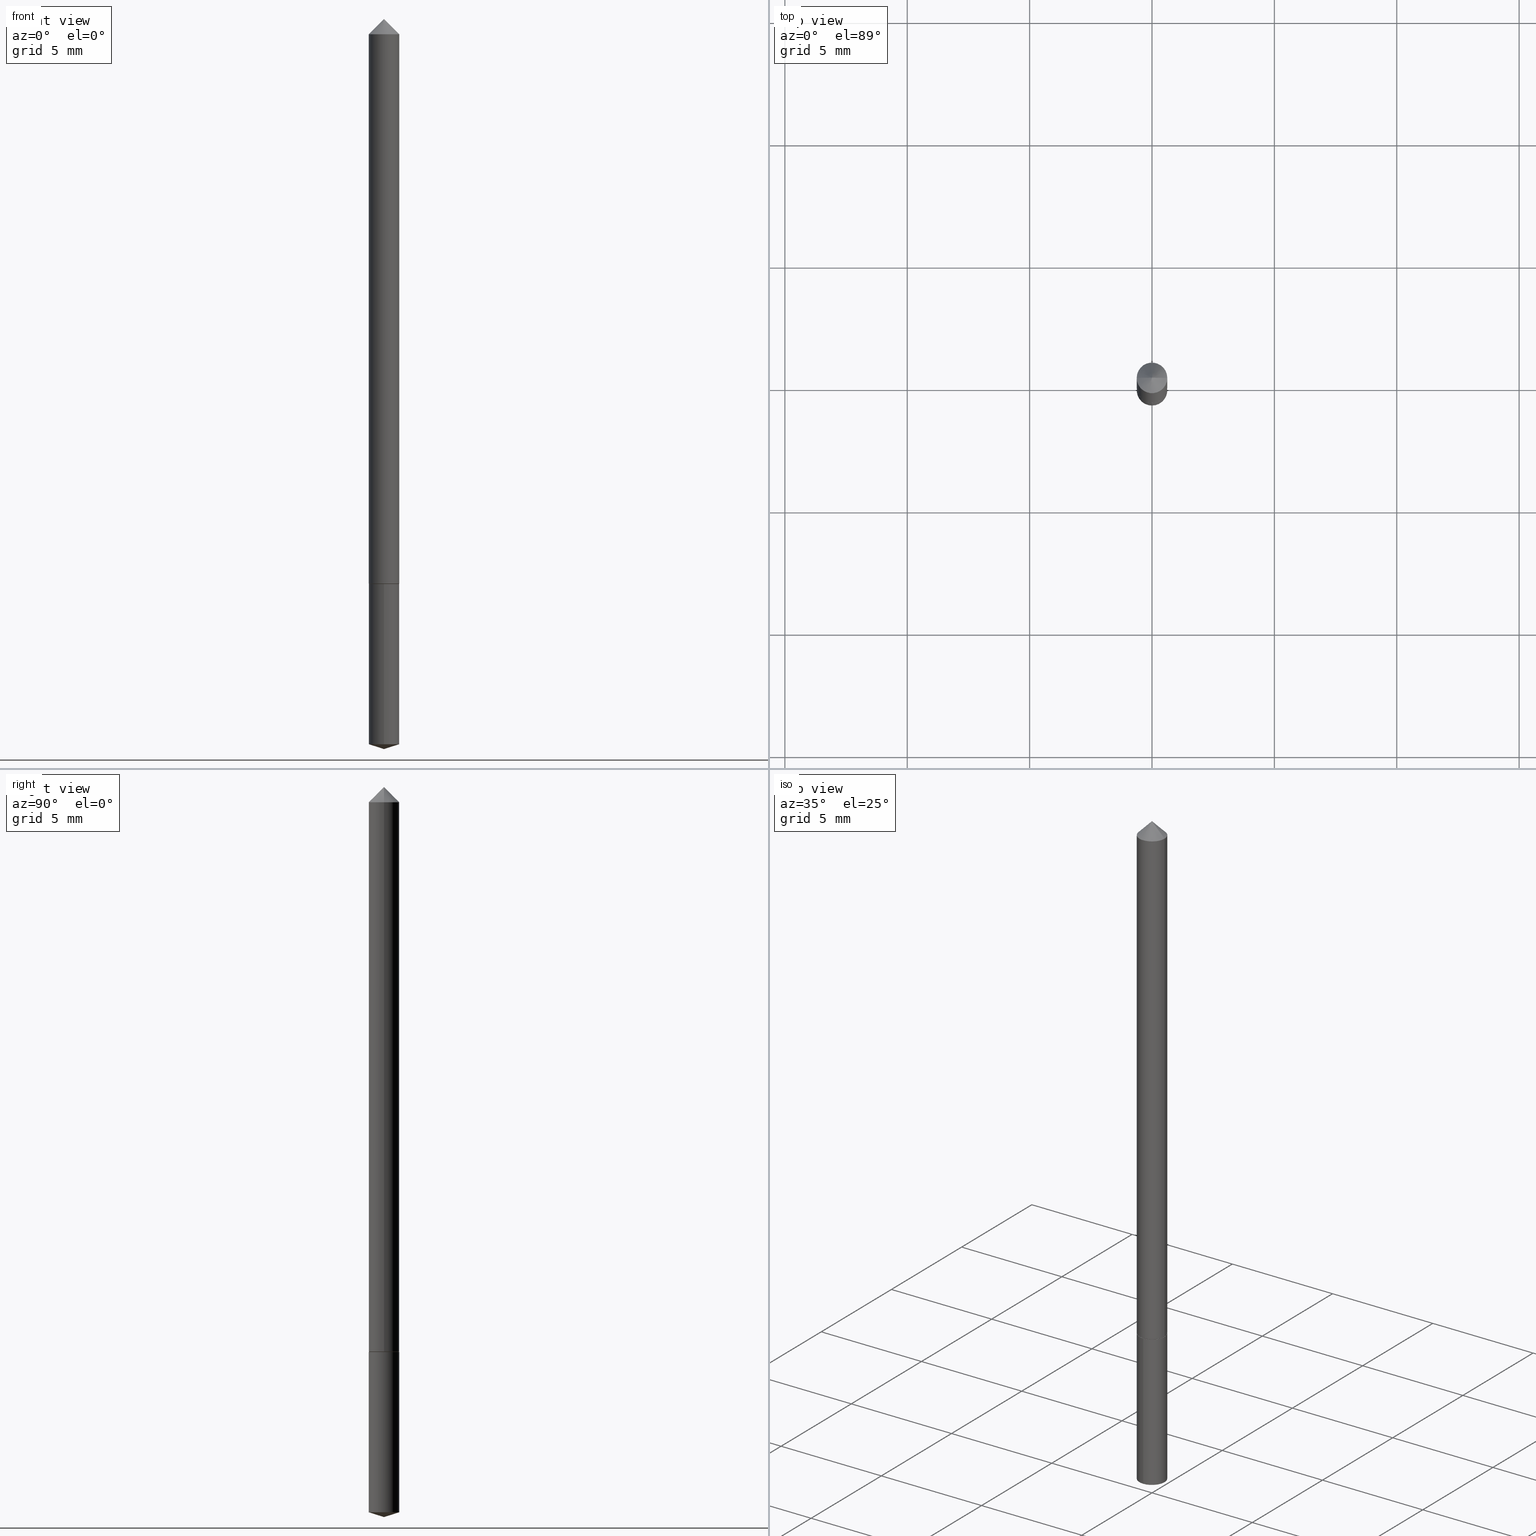
[diagram: canonical four-view strip — front | top / right | iso, engineering-drawing reading convention]
A machine part, canonical four-view strip (front | top / right | iso — engineering-drawing reading convention). The complete STEP part file that produces these views, byte-faithful:
ISO-10303-21;
HEADER;
FILE_DESCRIPTION (( 'STEP AP203' ),
    '1' );
FILE_NAME ('68658.STEP',
    '2024-04-23T13:26:09',
    ( '' ),
    ( '' ),
    'SwSTEP 2.0',
    'SolidWorks 2023',
    '' );
FILE_SCHEMA (( 'CONFIG_CONTROL_DESIGN' ));
ENDSEC;

DATA;
#1 = ORIENTED_EDGE ( 'NONE', *, *, #219, .T. ) ;
#2 = VERTEX_POINT ( 'NONE', #37 ) ;
#3 =( CONVERSION_BASED_UNIT ( 'INCH', #104 ) LENGTH_UNIT ( ) NAMED_UNIT ( #122 ) );
#4 = CARTESIAN_POINT ( 'NONE',  ( 1.747935129970070074E-16, 0.02459999999999680151, -0.9153000000000002245 ) ) ;
#5 = AXIS2_PLACEMENT_3D ( 'NONE', #108, #217, #82 ) ;
#6 = LINE ( 'NONE', #71, #221 ) ;
#7 =( NAMED_UNIT ( * ) SI_UNIT ( $, .STERADIAN. ) SOLID_ANGLE_UNIT ( ) );
#8 = CARTESIAN_POINT ( 'NONE',  ( 2.237114863898163135E-29, -3.194007128773709542E-15, -0.9148000000000000576 ) ) ;
#9 = EDGE_CURVE ( 'NONE', #27, #173, #145, .T. ) ;
#10 = UNCERTAINTY_MEASURE_WITH_UNIT (LENGTH_MEASURE( 1.000000000000000082E-05 ), #3, 'distance_accuracy_value', 'NONE');
#11 = CARTESIAN_POINT ( 'NONE',  ( 2.888189268024480678E-29, -4.124009058661143600E-15, -1.181100000000000039 ) ) ;
#12 = PRODUCT_RELATED_PRODUCT_CATEGORY ( 'detail', '', ( #361 ) ) ;
#13 = DIRECTION ( 'NONE',  ( -2.445338470937668711E-29, 3.491667986335741257E-15, 1.000000000000000000 ) ) ;
#14 = CIRCLE ( 'NONE', #134, 0.02410000000000009357 ) ;
#15 = DIRECTION ( 'NONE',  ( -2.445468806185136877E-29, 3.491481338843145188E-15, 1.000000000000000000 ) ) ;
#16 = EDGE_CURVE ( 'NONE', #200, #27, #229, .T. ) ;
#17 = CARTESIAN_POINT ( 'NONE',  ( 2.869341662322656677E-29, -4.096755620504595601E-15, -1.173343649793576970 ) ) ;
#18 = ADVANCED_FACE ( 'NONE', ( #120 ), #363, .T. ) ;
#19 =( LENGTH_UNIT ( ) NAMED_UNIT ( * ) SI_UNIT ( $, .METRE. ) );
#20 = CARTESIAN_POINT ( 'NONE',  ( -0.02460000000000000381, 6.267209003223318606E-17, -0.03125000000000020123 ) ) ;
#21 = CALENDAR_DATE ( 2024, 23, 4 ) ;
#22 = DIRECTION ( 'NONE',  ( 1.000000000000000000, -6.982962677686265922E-15, 4.876176775795935793E-29 ) ) ;
#23 = PERSON_AND_ORGANIZATION_ROLE ( 'design_supplier' ) ;
#24 = LINE ( 'NONE', #20, #185 ) ;
#25 = PERSON_AND_ORGANIZATION ( #309, #243 ) ;
#26 = AXIS2_PLACEMENT_3D ( 'NONE', #133, #353, #159 ) ;
#27 = VERTEX_POINT ( 'NONE', #152 ) ;
#28 = EDGE_CURVE ( 'NONE', #308, #307, #357, .T. ) ;
#29 = COORDINATED_UNIVERSAL_TIME_OFFSET ( 5, 0, .BEHIND. ) ;
#30 = ORIENTED_EDGE ( 'NONE', *, *, #9, .F. ) ;
#31 = CC_DESIGN_PERSON_AND_ORGANIZATION_ASSIGNMENT ( #57, #113, ( #300 ) ) ;
#32 = VERTEX_POINT ( 'NONE', #65 ) ;
#33 = AXIS2_PLACEMENT_3D ( 'NONE', #168, #190, #130 ) ;
#34 = AXIS2_PLACEMENT_3D ( 'NONE', #79, #216, #241 ) ;
#35 = ORIENTED_EDGE ( 'NONE', *, *, #16, .T. ) ;
#36 = EDGE_CURVE ( 'NONE', #32, #112, #61, .T. ) ;
#37 = CARTESIAN_POINT ( 'NONE',  ( -0.02410000000000009357, -3.021862842950835626E-15, -0.9153000000000002245 ) ) ;
#38 = CARTESIAN_POINT ( 'NONE',  ( 1.747935129970133429E-16, 0.02459999999999680151, -0.9153000000000002245 ) ) ;
#39 = EDGE_CURVE ( 'NONE', #2, #60, #118, .T. ) ;
#40 = CARTESIAN_POINT ( 'NONE',  ( -0.02460000000000011136, -3.019213615776724031E-15, -0.9148000000000000576 ) ) ;
#41 = EDGE_CURVE ( 'NONE', #173, #333, #155, .T. ) ;
#42 = LINE ( 'NONE', #236, #68 ) ;
#43 = MANIFOLD_SOLID_BREP ( 'Body-Move/Copy2[1]', #269 ) ;
#44 = FACE_OUTER_BOUND ( 'NONE', #175, .T. ) ;
#45 = DIRECTION ( 'NONE',  ( -2.445468806185136597E-29, 3.491481338843145583E-15, 1.000000000000000000 ) ) ;
#46 = VECTOR ( 'NONE', #93, 39.37007874015748143 ) ;
#47 = DIRECTION ( 'NONE',  ( -2.445338470937668711E-29, 3.491667986335741257E-15, 1.000000000000000000 ) ) ;
#48 = DIRECTION ( 'NONE',  ( 1.000000000000000000, -6.982962677686273810E-15, 0.000000000000000000 ) ) ;
#49 = DATE_AND_TIME ( #227, #271 ) ;
#50 = CARTESIAN_POINT ( 'NONE',  ( -1.717808818710597549E-16, -0.02460000000000319570, -0.9152999999999998915 ) ) ;
#51 = CONICAL_SURFACE ( 'NONE', #254, 0.02460000000000000381, 0.7853981633974450594 ) ;
#52 = EDGE_CURVE ( 'NONE', #196, #307, #184, .T. ) ;
#53 = FACE_OUTER_BOUND ( 'NONE', #59, .T. ) ;
#54 = FACE_OUTER_BOUND ( 'NONE', #288, .T. ) ;
#55 = EDGE_LOOP ( 'NONE', ( #306, #84 ) ) ;
#56 = AXIS2_PLACEMENT_3D ( 'NONE', #347, #321, #99 ) ;
#57 = PERSON_AND_ORGANIZATION ( #309, #243 ) ;
#58 = EDGE_LOOP ( 'NONE', ( #1, #226 ) ) ;
#59 = EDGE_LOOP ( 'NONE', ( #176, #276, #230 ) ) ;
#60 = VERTEX_POINT ( 'NONE', #121 ) ;
#61 = CIRCLE ( 'NONE', #354, 0.02460000000000011136 ) ;
#62 =( GEOMETRIC_REPRESENTATION_CONTEXT ( 3 ) GLOBAL_UNCERTAINTY_ASSIGNED_CONTEXT ( ( #10 ) ) GLOBAL_UNIT_ASSIGNED_CONTEXT ( ( #3, #285, #7 ) ) REPRESENTATION_CONTEXT ( 'NONE', 'WORKASPACE' ) );
#63 = ORIENTED_EDGE ( 'NONE', *, *, #16, .F. ) ;
#64 = DIRECTION ( 'NONE',  ( 2.445338470937668431E-29, -3.491667986335741257E-15, -1.000000000000000000 ) ) ;
#65 = CARTESIAN_POINT ( 'NONE',  ( 0.02460000000000011136, -3.365788010644792593E-15, -0.9148000000000000576 ) ) ;
#66 = EDGE_CURVE ( 'NONE', #307, #308, #292, .T. ) ;
#67 = ORIENTED_EDGE ( 'NONE', *, *, #78, .T. ) ;
#68 = VECTOR ( 'NONE', #318, 39.37007874015748143 ) ;
#69 = DATE_AND_TIME ( #317, #125 ) ;
#70 = FACE_OUTER_BOUND ( 'NONE', #58, .T. ) ;
#71 = CARTESIAN_POINT ( 'NONE',  ( 0.02460000000000011136, -3.365788010644792593E-15, -0.9148000000000000576 ) ) ;
#72 = DIRECTION ( 'NONE',  ( 1.000000000000000000, -6.982962677686269077E-15, 0.000000000000000000 ) ) ;
#73 = CARTESIAN_POINT ( 'NONE',  ( -1.717808818710534933E-16, -0.02460000000000410816, -1.173343649793576970 ) ) ;
#74 = AXIS2_PLACEMENT_3D ( 'NONE', #17, #328, #128 ) ;
#75 = CARTESIAN_POINT ( 'NONE',  ( 2.238337598301255656E-29, -3.195752869443131440E-15, -0.9153000000000001135 ) ) ;
#76 = COORDINATED_UNIVERSAL_TIME_OFFSET ( 5, 0, .BEHIND. ) ;
#77 = PLANE ( 'NONE',  #320 ) ;
#78 = EDGE_CURVE ( 'NONE', #60, #32, #6, .T. ) ;
#79 = CARTESIAN_POINT ( 'NONE',  ( -9.338485958327582486E-28, 1.333434053363140746E-13, 38.18897874015748073 ) ) ;
#80 = DATE_AND_TIME ( #268, #223 ) ;
#81 = APPLICATION_CONTEXT ( 'configuration controlled 3d designs of mechanical parts and assemblies' ) ;
#82 = DIRECTION ( 'NONE',  ( -1.000000000000000000, 6.982962677686266711E-15, 0.000000000000000000 ) ) ;
#83 = DATE_AND_TIME ( #21, #97 ) ;
#84 = ORIENTED_EDGE ( 'NONE', *, *, #39, .F. ) ;
#85 = CC_DESIGN_PERSON_AND_ORGANIZATION_ASSIGNMENT ( #172, #277, ( #282 ) ) ;
#86 = ORIENTED_EDGE ( 'NONE', *, *, #219, .F. ) ;
#87 = APPROVAL_PERSON_ORGANIZATION ( #203, #215, #344 ) ;
#88 = VERTEX_POINT ( 'NONE', #11 ) ;
#89 = ORIENTED_EDGE ( 'NONE', *, *, #36, .T. ) ;
#90 = ORIENTED_EDGE ( 'NONE', *, *, #195, .T. ) ;
#91 = AXIS2_PLACEMENT_3D ( 'NONE', #126, #345, #260 ) ;
#92 = APPLICATION_PROTOCOL_DEFINITION ( 'international standard', 'config_control_design', 1994, #81 ) ;
#93 = DIRECTION ( 'NONE',  ( 0.7071067811865452413, -7.319954787623248157E-15, -0.7071067811865497932 ) ) ;
#94 = EDGE_CURVE ( 'NONE', #200, #333, #235, .T. ) ;
#95 = DIRECTION ( 'NONE',  ( -2.445338470937668711E-29, 3.491667986335741257E-15, 1.000000000000000000 ) ) ;
#96 = DIRECTION ( 'NONE',  ( 1.000000000000000000, -6.982962677686266711E-15, 4.876176775795935793E-29 ) ) ;
#97 = LOCAL_TIME ( 9, 26, 9.000000000000000000, #29 ) ;
#98 = DESIGN_CONTEXT ( 'detailed design', #81, 'design' ) ;
#99 = DIRECTION ( 'NONE',  ( 1.000000000000000000, -6.982962677686266711E-15, 4.876176775795935793E-29 ) ) ;
#100 = DIRECTION ( 'NONE',  ( -2.445468806185136597E-29, 3.491481338843145583E-15, 1.000000000000000000 ) ) ;
#101 = DIRECTION ( 'NONE',  ( 2.445468806185136597E-29, -3.491481338843145583E-15, -1.000000000000000000 ) ) ;
#102 = VECTOR ( 'NONE', #154, 39.37007874015748854 ) ;
#103 = DIRECTION ( 'NONE',  ( -2.445338470937668711E-29, 3.491667986335741257E-15, 1.000000000000000000 ) ) ;
#104 = LENGTH_MEASURE_WITH_UNIT ( LENGTH_MEASURE( 0.02539999999999999897 ), #19 );
#105 = FACE_OUTER_BOUND ( 'NONE', #136, .T. ) ;
#106 = DIRECTION ( 'NONE',  ( 1.000000000000000000, -6.982962677686269077E-15, 0.000000000000000000 ) ) ;
#107 = CALENDAR_DATE ( 2024, 23, 4 ) ;
#108 = CARTESIAN_POINT ( 'NONE',  ( 7.642090019328601786E-31, -1.091087918388490144E-16, -0.03125000000000020123 ) ) ;
#109 = APPROVAL_PERSON_ORGANIZATION ( #356, #199, #359 ) ;
#110 = SECURITY_CLASSIFICATION_LEVEL ( 'unclassified' ) ;
#111 = PERSON_AND_ORGANIZATION ( #309, #243 ) ;
#112 = VERTEX_POINT ( 'NONE', #40 ) ;
#113 = PERSON_AND_ORGANIZATION_ROLE ( 'creator' ) ;
#114 = ORIENTED_EDGE ( 'NONE', *, *, #28, .T. ) ;
#115 = ORIENTED_EDGE ( 'NONE', *, *, #28, .F. ) ;
#116 = ORIENTED_EDGE ( 'NONE', *, *, #9, .T. ) ;
#117 = CARTESIAN_POINT ( 'NONE',  ( 7.642090019328601786E-31, -1.091087918388490144E-16, -0.03125000000000020123 ) ) ;
#118 = CIRCLE ( 'NONE', #129, 0.02410000000000009357 ) ;
#119 = ADVANCED_FACE ( 'NONE', ( #44 ), #183, .T. ) ;
#120 = FACE_OUTER_BOUND ( 'NONE', #143, .T. ) ;
#121 = CARTESIAN_POINT ( 'NONE',  ( 0.02410000000000009357, -3.364042269975371483E-15, -0.9153000000000002245 ) ) ;
#122 = DIMENSIONAL_EXPONENTS ( 1.000000000000000000, 0.000000000000000000, 0.000000000000000000, 0.000000000000000000, 0.000000000000000000, 0.000000000000000000, 0.000000000000000000 ) ;
#123 = DIRECTION ( 'NONE',  ( 6.776566513254254982E-15, 0.9537169507482285979, 0.3007057995042680121 ) ) ;
#124 = VECTOR ( 'NONE', #350, 39.37007874015748143 ) ;
#125 = LOCAL_TIME ( 9, 26, 9.000000000000000000, #259 ) ;
#126 = CARTESIAN_POINT ( 'NONE',  ( 2.869341662322656677E-29, -4.096755620504595601E-15, -1.173343649793576970 ) ) ;
#127 = CARTESIAN_POINT ( 'NONE',  ( 0.02460000000000005932, -1.717808818710825825E-16, 1.199539486845803038E-30 ) ) ;
#128 = DIRECTION ( 'NONE',  ( -6.982962677686265922E-15, -1.000000000000000000, 5.552536572488340164E-15 ) ) ;
#129 = AXIS2_PLACEMENT_3D ( 'NONE', #150, #211, #257 ) ;
#130 = DIRECTION ( 'NONE',  ( -6.982962677686265922E-15, -1.000000000000000000, 5.552536572488340164E-15 ) ) ;
#131 = SHAPE_DEFINITION_REPRESENTATION ( #151, #364 ) ;
#132 = DIRECTION ( 'NONE',  ( 1.000000000000000000, -6.982962677686269077E-15, 0.000000000000000000 ) ) ;
#133 = CARTESIAN_POINT ( 'NONE',  ( 2.238337598301255656E-29, -3.195752869443131440E-15, -0.9153000000000001135 ) ) ;
#134 = AXIS2_PLACEMENT_3D ( 'NONE', #262, #100, #48 ) ;
#135 = AXIS2_PLACEMENT_3D ( 'NONE', #290, #237, #316 ) ;
#136 = EDGE_LOOP ( 'NONE', ( #283, #138, #310 ) ) ;
#137 = APPROVAL_DATE_TIME ( #220, #199 ) ;
#138 = ORIENTED_EDGE ( 'NONE', *, *, #167, .T. ) ;
#139 = EDGE_CURVE ( 'NONE', #2, #112, #42, .T. ) ;
#140 = ORIENTED_EDGE ( 'NONE', *, *, #212, .T. ) ;
#141 = VECTOR ( 'NONE', #95, 39.37007874015748143 ) ;
#142 = CC_DESIGN_PERSON_AND_ORGANIZATION_ASSIGNMENT ( #111, #23, ( #300 ) ) ;
#143 = EDGE_LOOP ( 'NONE', ( #280, #337, #67, #225 ) ) ;
#144 = DIRECTION ( 'NONE',  ( 0.000000000000000000, 0.000000000000000000, 1.000000000000000000 ) ) ;
#145 = LINE ( 'NONE', #4, #141 ) ;
#146 = ADVANCED_FACE ( 'NONE', ( #70 ), #182, .F. ) ;
#147 = DIRECTION ( 'NONE',  ( 6.982962677686265922E-15, 1.000000000000000000, -3.491667986335741257E-15 ) ) ;
#148 = LOCAL_TIME ( 9, 26, 9.000000000000000000, #165 ) ;
#149 = APPROVAL_STATUS ( 'not_yet_approved' ) ;
#150 = CARTESIAN_POINT ( 'NONE',  ( 2.238337598301255936E-29, -3.195752869443131834E-15, -0.9153000000000002245 ) ) ;
#151 = PRODUCT_DEFINITION_SHAPE ( 'NONE', 'NONE',  #282 ) ;
#152 = CARTESIAN_POINT ( 'NONE',  ( 1.747935129970133676E-16, 0.02459999999999590986, -1.173343649793577192 ) ) ;
#153 = EDGE_CURVE ( 'NONE', #88, #27, #178, .T. ) ;
#154 = DIRECTION ( 'NONE',  ( -6.659769872151629722E-15, -0.9537169507482263775, 0.3007057995042746179 ) ) ;
#155 = CIRCLE ( 'NONE', #348, 0.02460000000000000034 ) ;
#156 = DIRECTION ( 'NONE',  ( -6.982962677686265922E-15, -1.000000000000000000, 5.552536572488340164E-15 ) ) ;
#157 = CYLINDRICAL_SURFACE ( 'NONE', #33, 0.02460000000000000034 ) ;
#158 = ADVANCED_FACE ( 'NONE', ( #238 ), #284, .T. ) ;
#159 = DIRECTION ( 'NONE',  ( -6.982962677686265922E-15, -1.000000000000000000, 5.552536572488340164E-15 ) ) ;
#160 = APPROVAL ( #299, 'UNSPECIFIED' ) ;
#161 = APPROVAL_DATE_TIME ( #69, #215 ) ;
#162 = CARTESIAN_POINT ( 'NONE',  ( -1.384198113165531792E-29, -8.383430190191862604E-15, -0.9153000000000002245 ) ) ;
#163 = MANIFOLD_SOLID_BREP ( 'Body-Move/Copy2[2]', #340 ) ;
#164 = SECURITY_CLASSIFICATION ( '', '', #110 ) ;
#165 = COORDINATED_UNIVERSAL_TIME_OFFSET ( 5, 0, .BEHIND. ) ;
#166 = DIRECTION ( 'NONE',  ( -6.982962677686265922E-15, -1.000000000000000000, 3.500519750498715082E-15 ) ) ;
#167 = EDGE_CURVE ( 'NONE', #88, #200, #240, .T. ) ;
#168 = CARTESIAN_POINT ( 'NONE',  ( 2.238337598301255656E-29, -3.195752869443131440E-15, -0.9153000000000001135 ) ) ;
#169 = VECTOR ( 'NONE', #329, 39.37007874015748143 ) ;
#170 = EDGE_LOOP ( 'NONE', ( #35, #116, #86, #358 ) ) ;
#171 = CC_DESIGN_APPROVAL ( #215, ( #282 ) ) ;
#172 = PERSON_AND_ORGANIZATION ( #309, #243 ) ;
#173 = VERTEX_POINT ( 'NONE', #38 ) ;
#174 = ORIENTED_EDGE ( 'NONE', *, *, #66, .F. ) ;
#175 = EDGE_LOOP ( 'NONE', ( #231, #338, #303, #115 ) ) ;
#176 = ORIENTED_EDGE ( 'NONE', *, *, #208, .F. ) ;
#177 = CC_DESIGN_DATE_AND_TIME_ASSIGNMENT ( #83, #273, ( #282 ) ) ;
#178 = LINE ( 'NONE', #261, #293 ) ;
#179 = DIRECTION ( 'NONE',  ( -2.445468806185136597E-29, 3.491481338843145583E-15, 1.000000000000000000 ) ) ;
#180 = EDGE_LOOP ( 'NONE', ( #250, #339, #63 ) ) ;
#181 = APPROVAL_PERSON_ORGANIZATION ( #25, #160, #297 ) ;
#182 = PLANE ( 'NONE',  #249 ) ;
#183 = CYLINDRICAL_SURFACE ( 'NONE', #194, 0.02460000000000005932 ) ;
#184 = LINE ( 'NONE', #265, #46 ) ;
#185 = VECTOR ( 'NONE', #275, 39.37007874015748143 ) ;
#186 = AXIS2_PLACEMENT_3D ( 'NONE', #205, #144, #311 ) ;
#187 = FACE_OUTER_BOUND ( 'NONE', #180, .T. ) ;
#188 = DATE_TIME_ROLE ( 'classification_date' ) ;
#189 = DIRECTION ( 'NONE',  ( -6.982962677686265922E-15, -1.000000000000000000, 5.552536572488340164E-15 ) ) ;
#190 = DIRECTION ( 'NONE',  ( -2.445338470937668711E-29, 3.491667986335741257E-15, 1.000000000000000000 ) ) ;
#191 = CONICAL_SURFACE ( 'NONE', #34, 124.8659371009146923, 1.265363707695890794 ) ;
#192 = CARTESIAN_POINT ( 'NONE',  ( 0.02460000000000000381, -2.808896737099312148E-16, -0.03125000000000020123 ) ) ;
#193 = ORIENTED_EDGE ( 'NONE', *, *, #94, .T. ) ;
#194 = AXIS2_PLACEMENT_3D ( 'NONE', #289, #346, #96 ) ;
#195 = EDGE_CURVE ( 'NONE', #60, #2, #14, .T. ) ;
#196 = VERTEX_POINT ( 'NONE', #222 ) ;
#197 = CIRCLE ( 'NONE', #239, 0.02460000000000011136 ) ;
#198 = ORIENTED_EDGE ( 'NONE', *, *, #208, .T. ) ;
#199 = APPROVAL ( #251, 'UNSPECIFIED' ) ;
#200 = VERTEX_POINT ( 'NONE', #73 ) ;
#201 = ORIENTED_EDGE ( 'NONE', *, *, #296, .F. ) ;
#202 = CC_DESIGN_SECURITY_CLASSIFICATION ( #164, ( #300 ) ) ;
#203 = PERSON_AND_ORGANIZATION ( #309, #243 ) ;
#204 = DIRECTION ( 'NONE',  ( 0.7071067811864388819, -2.468850131081119129E-15, 0.7071067811866561525 ) ) ;
#205 = CARTESIAN_POINT ( 'NONE',  ( 0.000000000000000000, 0.000000000000000000, 0.000000000000000000 ) ) ;
#206 = DIRECTION ( 'NONE',  ( 1.000000000000000000, -6.982962677686269077E-15, 0.000000000000000000 ) ) ;
#207 = DIRECTION ( 'NONE',  ( -2.445468806185136597E-29, 3.491481338843145583E-15, 1.000000000000000000 ) ) ;
#208 = EDGE_CURVE ( 'NONE', #196, #308, #24, .T. ) ;
#209 = AXIS2_PLACEMENT_3D ( 'NONE', #291, #45, #206 ) ;
#210 = CARTESIAN_POINT ( 'NONE',  ( 2.888189268024481239E-29, -4.124009058661143600E-15, -1.181100000000000039 ) ) ;
#211 = DIRECTION ( 'NONE',  ( -2.445468806185136597E-29, 3.491481338843145583E-15, 1.000000000000000000 ) ) ;
#212 = EDGE_CURVE ( 'NONE', #112, #308, #247, .T. ) ;
#213 = CYLINDRICAL_SURFACE ( 'NONE', #342, 0.02460000000000000034 ) ;
#214 = CC_DESIGN_APPROVAL ( #160, ( #164 ) ) ;
#215 = APPROVAL ( #149, 'UNSPECIFIED' ) ;
#216 = DIRECTION ( 'NONE',  ( -2.445338470937668711E-29, 3.491667986335741257E-15, 1.000000000000000000 ) ) ;
#217 = DIRECTION ( 'NONE',  ( 2.445468806185136597E-29, -3.491481338843145583E-15, -1.000000000000000000 ) ) ;
#218 = CARTESIAN_POINT ( 'NONE',  ( -9.338485958327582486E-28, 1.333434053363140746E-13, 38.18897874015748073 ) ) ;
#219 = EDGE_CURVE ( 'NONE', #333, #173, #319, .T. ) ;
#220 = DATE_AND_TIME ( #107, #148 ) ;
#221 = VECTOR ( 'NONE', #204, 39.37007874015748143 ) ;
#222 = CARTESIAN_POINT ( 'NONE',  ( 1.607607466483370568E-31, -2.348513293393834033E-17, -0.006650000000000042162 ) ) ;
#223 = LOCAL_TIME ( 9, 26, 9.000000000000000000, #330 ) ;
#224 = APPROVAL_DATE_TIME ( #80, #160 ) ;
#225 = ORIENTED_EDGE ( 'NONE', *, *, #336, .F. ) ;
#226 = ORIENTED_EDGE ( 'NONE', *, *, #41, .T. ) ;
#227 = CALENDAR_DATE ( 2024, 23, 4 ) ;
#228 = CC_DESIGN_PERSON_AND_ORGANIZATION_ASSIGNMENT ( #304, #246, ( #164 ) ) ;
#229 = CIRCLE ( 'NONE', #91, 0.02460000000000000034 ) ;
#230 = ORIENTED_EDGE ( 'NONE', *, *, #66, .T. ) ;
#231 = ORIENTED_EDGE ( 'NONE', *, *, #212, .F. ) ;
#232 = ORIENTED_EDGE ( 'NONE', *, *, #139, .T. ) ;
#233 = ADVANCED_FACE ( 'NONE', ( #105 ), #331, .T. ) ;
#234 = PERSON_AND_ORGANIZATION ( #309, #243 ) ;
#235 = LINE ( 'NONE', #343, #124 ) ;
#236 = CARTESIAN_POINT ( 'NONE',  ( -0.02460000000000011136, -3.019213615776724031E-15, -0.9148000000000000576 ) ) ;
#237 = DIRECTION ( 'NONE',  ( -2.445468806185136597E-29, 3.491481338843145583E-15, 1.000000000000000000 ) ) ;
#238 = FACE_OUTER_BOUND ( 'NONE', #255, .T. ) ;
#239 = AXIS2_PLACEMENT_3D ( 'NONE', #244, #294, #106 ) ;
#240 = LINE ( 'NONE', #210, #102 ) ;
#241 = DIRECTION ( 'NONE',  ( -6.982962677686265922E-15, -1.000000000000000000, 3.500519750498715082E-15 ) ) ;
#242 = CARTESIAN_POINT ( 'NONE',  ( -0.02460000000000005932, 1.747935129969850672E-16, -1.210058032202709861E-30 ) ) ;
#243 = ORGANIZATION ( 'UNSPECIFIED', 'UNSPECIFIED', '' ) ;
#244 = CARTESIAN_POINT ( 'NONE',  ( 2.237114863898163135E-29, -3.194007128773709542E-15, -0.9148000000000000576 ) ) ;
#245 = ADVANCED_FACE ( 'NONE', ( #302 ), #287, .T. ) ;
#246 = PERSON_AND_ORGANIZATION_ROLE ( 'classification_officer' ) ;
#247 = LINE ( 'NONE', #242, #263 ) ;
#248 = APPLICATION_CONTEXT ( 'configuration controlled 3d designs of mechanical parts and assemblies' ) ;
#249 = AXIS2_PLACEMENT_3D ( 'NONE', #313, #64, #147 ) ;
#250 = ORIENTED_EDGE ( 'NONE', *, *, #167, .F. ) ;
#251 = APPROVAL_STATUS ( 'not_yet_approved' ) ;
#252 = EDGE_LOOP ( 'NONE', ( #90, #232, #334, #253 ) ) ;
#253 = ORIENTED_EDGE ( 'NONE', *, *, #78, .F. ) ;
#254 = AXIS2_PLACEMENT_3D ( 'NONE', #351, #101, #326 ) ;
#255 = EDGE_LOOP ( 'NONE', ( #89, #140, #174, #201 ) ) ;
#256 = ORIENTED_EDGE ( 'NONE', *, *, #52, .F. ) ;
#257 = DIRECTION ( 'NONE',  ( 1.000000000000000000, -6.982962677686273810E-15, 0.000000000000000000 ) ) ;
#258 = AXIS2_PLACEMENT_3D ( 'NONE', #218, #103, #166 ) ;
#259 = COORDINATED_UNIVERSAL_TIME_OFFSET ( 5, 0, .BEHIND. ) ;
#260 = DIRECTION ( 'NONE',  ( -6.982962677686265922E-15, -1.000000000000000000, 5.552536572488340164E-15 ) ) ;
#261 = CARTESIAN_POINT ( 'NONE',  ( 2.888429951896104895E-29, -4.123667381761198915E-15, -1.181100000000000039 ) ) ;
#262 = CARTESIAN_POINT ( 'NONE',  ( 2.238337598301255936E-29, -3.195752869443131834E-15, -0.9153000000000002245 ) ) ;
#263 = VECTOR ( 'NONE', #15, 39.37007874015748143 ) ;
#264 = CIRCLE ( 'NONE', #74, 0.02460000000000000034 ) ;
#265 = CARTESIAN_POINT ( 'NONE',  ( 0.02460000000000000381, -2.778770425840287055E-16, -0.03125000000000020123 ) ) ;
#266 = FACE_OUTER_BOUND ( 'NONE', #170, .T. ) ;
#267 = DIRECTION ( 'NONE',  ( -2.445468806185136597E-29, 3.491481338843145583E-15, 1.000000000000000000 ) ) ;
#268 = CALENDAR_DATE ( 2024, 23, 4 ) ;
#269 = CLOSED_SHELL ( 'NONE', ( #349, #323, #233, #312, #146 ) ) ;
#270 = ADVANCED_FACE ( 'NONE', ( #298 ), #335, .T. ) ;
#271 = LOCAL_TIME ( 9, 26, 9.000000000000000000, #76 ) ;
#272 = DIRECTION ( 'NONE',  ( -2.438088387897960049E-29, 3.491481338843145188E-15, 1.000000000000000000 ) ) ;
#273 = DATE_TIME_ROLE ( 'creation_date' ) ;
#274 = CC_DESIGN_PERSON_AND_ORGANIZATION_ASSIGNMENT ( #234, #341, ( #361 ) ) ;
#275 = DIRECTION ( 'NONE',  ( -0.7071067811865452413, 2.468850131082233000E-15, -0.7071067811865497932 ) ) ;
#276 = ORIENTED_EDGE ( 'NONE', *, *, #52, .T. ) ;
#277 = PERSON_AND_ORGANIZATION_ROLE ( 'creator' ) ;
#278 = ORIENTED_EDGE ( 'NONE', *, *, #352, .T. ) ;
#279 = EDGE_LOOP ( 'NONE', ( #256, #198, #114 ) ) ;
#280 = ORIENTED_EDGE ( 'NONE', *, *, #139, .F. ) ;
#281 = CC_DESIGN_APPROVAL ( #199, ( #300 ) ) ;
#282 = PRODUCT_DEFINITION ( 'UNKNOWN', '', #300, #98 ) ;
#283 = ORIENTED_EDGE ( 'NONE', *, *, #153, .F. ) ;
#284 = CYLINDRICAL_SURFACE ( 'NONE', #56, 0.02460000000000005932 ) ;
#285 =( NAMED_UNIT ( * ) PLANE_ANGLE_UNIT ( ) SI_UNIT ( $, .RADIAN. ) );
#286 = DIRECTION ( 'NONE',  ( 1.000000000000000000, -6.982962677686267499E-15, 0.000000000000000000 ) ) ;
#287 = CONICAL_SURFACE ( 'NONE', #324, 0.02460000000000011136, 0.7853981633972946241 ) ;
#288 = EDGE_LOOP ( 'NONE', ( #30, #278, #193, #362 ) ) ;
#289 = CARTESIAN_POINT ( 'NONE',  ( 0.000000000000000000, 0.000000000000000000, 0.000000000000000000 ) ) ;
#290 = CARTESIAN_POINT ( 'NONE',  ( 7.642090019328601786E-31, -1.091087918388490144E-16, -0.03125000000000020123 ) ) ;
#291 = CARTESIAN_POINT ( 'NONE',  ( 2.237114863898163135E-29, -3.194007128773709542E-15, -0.9148000000000000576 ) ) ;
#292 = CIRCLE ( 'NONE', #305, 0.02460000000000000381 ) ;
#293 = VECTOR ( 'NONE', #123, 39.37007874015748854 ) ;
#294 = DIRECTION ( 'NONE',  ( -2.445468806185136597E-29, 3.491481338843145583E-15, 1.000000000000000000 ) ) ;
#295 = FACE_OUTER_BOUND ( 'NONE', #55, .T. ) ;
#296 = EDGE_CURVE ( 'NONE', #32, #307, #332, .T. ) ;
#297 = APPROVAL_ROLE ( '' ) ;
#298 = FACE_OUTER_BOUND ( 'NONE', #279, .T. ) ;
#299 = APPROVAL_STATUS ( 'not_yet_approved' ) ;
#300 = PRODUCT_DEFINITION_FORMATION_WITH_SPECIFIED_SOURCE ( 'ANY', '', #361, .NOT_KNOWN. ) ;
#301 = CARTESIAN_POINT ( 'NONE',  ( -0.02460000000000000381, -1.476764447309292430E-15, -0.03125000000000020123 ) ) ;
#302 = FACE_OUTER_BOUND ( 'NONE', #252, .T. ) ;
#303 = ORIENTED_EDGE ( 'NONE', *, *, #296, .T. ) ;
#304 = PERSON_AND_ORGANIZATION ( #309, #243 ) ;
#305 = AXIS2_PLACEMENT_3D ( 'NONE', #117, #179, #286 ) ;
#306 = ORIENTED_EDGE ( 'NONE', *, *, #195, .F. ) ;
#307 = VERTEX_POINT ( 'NONE', #192 ) ;
#308 = VERTEX_POINT ( 'NONE', #301 ) ;
#309 = PERSON ( 'UNSPECIFIED', 'UNSPECIFIED', 'UNSPECIFIED', ('UNSPECIFIED'), ('UNSPECIFIED'), ('UNSPECIFIED') ) ;
#310 = ORIENTED_EDGE ( 'NONE', *, *, #352, .F. ) ;
#311 = DIRECTION ( 'NONE',  ( 1.000000000000000000, 0.000000000000000000, 0.000000000000000000 ) ) ;
#312 = ADVANCED_FACE ( 'NONE', ( #54 ), #157, .T. ) ;
#313 = CARTESIAN_POINT ( 'NONE',  ( 2.238337598301255656E-29, -3.195752869443131440E-15, -0.9153000000000001135 ) ) ;
#314 = APPLICATION_PROTOCOL_DEFINITION ( 'international standard', 'config_control_design', 1994, #248 ) ;
#315 = CC_DESIGN_DATE_AND_TIME_ASSIGNMENT ( #49, #188, ( #164 ) ) ;
#316 = DIRECTION ( 'NONE',  ( 1.000000000000000000, -6.982962677686267499E-15, 0.000000000000000000 ) ) ;
#317 = CALENDAR_DATE ( 2024, 23, 4 ) ;
#318 = DIRECTION ( 'NONE',  ( -0.7071067811864388819, 7.493145998869961307E-15, 0.7071067811866561525 ) ) ;
#319 = CIRCLE ( 'NONE', #26, 0.02460000000000000034 ) ;
#320 = AXIS2_PLACEMENT_3D ( 'NONE', #162, #272, #22 ) ;
#321 = DIRECTION ( 'NONE',  ( -2.445468806185136597E-29, 3.491481338843145583E-15, 1.000000000000000000 ) ) ;
#322 = CARTESIAN_POINT ( 'NONE',  ( 2.238337598301255656E-29, -3.195752869443131440E-15, -0.9153000000000001135 ) ) ;
#323 = ADVANCED_FACE ( 'NONE', ( #187 ), #191, .T. ) ;
#324 = AXIS2_PLACEMENT_3D ( 'NONE', #355, #267, #132 ) ;
#325 = ADVANCED_FACE ( 'NONE', ( #53 ), #51, .T. ) ;
#326 = DIRECTION ( 'NONE',  ( -1.000000000000000000, 6.982962677686266711E-15, 0.000000000000000000 ) ) ;
#327 = MECHANICAL_CONTEXT ( 'NONE', #248, 'mechanical' ) ;
#328 = DIRECTION ( 'NONE',  ( -2.445338470937668711E-29, 3.491667986335741257E-15, 1.000000000000000000 ) ) ;
#329 = DIRECTION ( 'NONE',  ( -2.445468806185136877E-29, 3.491481338843145188E-15, 1.000000000000000000 ) ) ;
#330 = COORDINATED_UNIVERSAL_TIME_OFFSET ( 5, 0, .BEHIND. ) ;
#331 = CONICAL_SURFACE ( 'NONE', #258, 124.8659371009146923, 1.265363707695890794 ) ;
#332 = LINE ( 'NONE', #127, #169 ) ;
#333 = VERTEX_POINT ( 'NONE', #50 ) ;
#334 = ORIENTED_EDGE ( 'NONE', *, *, #36, .F. ) ;
#335 = CONICAL_SURFACE ( 'NONE', #5, 0.02460000000000000381, 0.7853981633974450594 ) ;
#336 = EDGE_CURVE ( 'NONE', #112, #32, #197, .T. ) ;
#337 = ORIENTED_EDGE ( 'NONE', *, *, #39, .T. ) ;
#338 = ORIENTED_EDGE ( 'NONE', *, *, #336, .T. ) ;
#339 = ORIENTED_EDGE ( 'NONE', *, *, #153, .T. ) ;
#340 = CLOSED_SHELL ( 'NONE', ( #325, #158, #245, #360, #18, #119, #270 ) ) ;
#341 = PERSON_AND_ORGANIZATION_ROLE ( 'design_owner' ) ;
#342 = AXIS2_PLACEMENT_3D ( 'NONE', #75, #47, #189 ) ;
#343 = CARTESIAN_POINT ( 'NONE',  ( -1.717808818710597549E-16, -0.02460000000000319570, -0.9152999999999998915 ) ) ;
#344 = APPROVAL_ROLE ( '' ) ;
#345 = DIRECTION ( 'NONE',  ( -2.445338470937668711E-29, 3.491667986335741257E-15, 1.000000000000000000 ) ) ;
#346 = DIRECTION ( 'NONE',  ( -2.445468806185136597E-29, 3.491481338843145583E-15, 1.000000000000000000 ) ) ;
#347 = CARTESIAN_POINT ( 'NONE',  ( 0.000000000000000000, 0.000000000000000000, 0.000000000000000000 ) ) ;
#348 = AXIS2_PLACEMENT_3D ( 'NONE', #322, #13, #156 ) ;
#349 = ADVANCED_FACE ( 'NONE', ( #266 ), #213, .T. ) ;
#350 = DIRECTION ( 'NONE',  ( -2.445338470937668711E-29, 3.491667986335741257E-15, 1.000000000000000000 ) ) ;
#351 = CARTESIAN_POINT ( 'NONE',  ( 7.642090019328601786E-31, -1.091087918388490144E-16, -0.03125000000000020123 ) ) ;
#352 = EDGE_CURVE ( 'NONE', #27, #200, #264, .T. ) ;
#353 = DIRECTION ( 'NONE',  ( -2.445338470937668711E-29, 3.491667986335741257E-15, 1.000000000000000000 ) ) ;
#354 = AXIS2_PLACEMENT_3D ( 'NONE', #8, #207, #72 ) ;
#355 = CARTESIAN_POINT ( 'NONE',  ( 2.237114863898163135E-29, -3.194007128773709542E-15, -0.9148000000000000576 ) ) ;
#356 = PERSON_AND_ORGANIZATION ( #309, #243 ) ;
#357 = CIRCLE ( 'NONE', #135, 0.02460000000000000381 ) ;
#358 = ORIENTED_EDGE ( 'NONE', *, *, #94, .F. ) ;
#359 = APPROVAL_ROLE ( '' ) ;
#360 = ADVANCED_FACE ( 'NONE', ( #295 ), #77, .F. ) ;
#361 = PRODUCT ( '68658', '68658', '', ( #327 ) ) ;
#362 = ORIENTED_EDGE ( 'NONE', *, *, #41, .F. ) ;
#363 = CONICAL_SURFACE ( 'NONE', #209, 0.02460000000000011136, 0.7853981633972946241 ) ;
#364 = ADVANCED_BREP_SHAPE_REPRESENTATION ( '68658', ( #43, #163, #186 ), #62 ) ;
ENDSEC;
END-ISO-10303-21;
